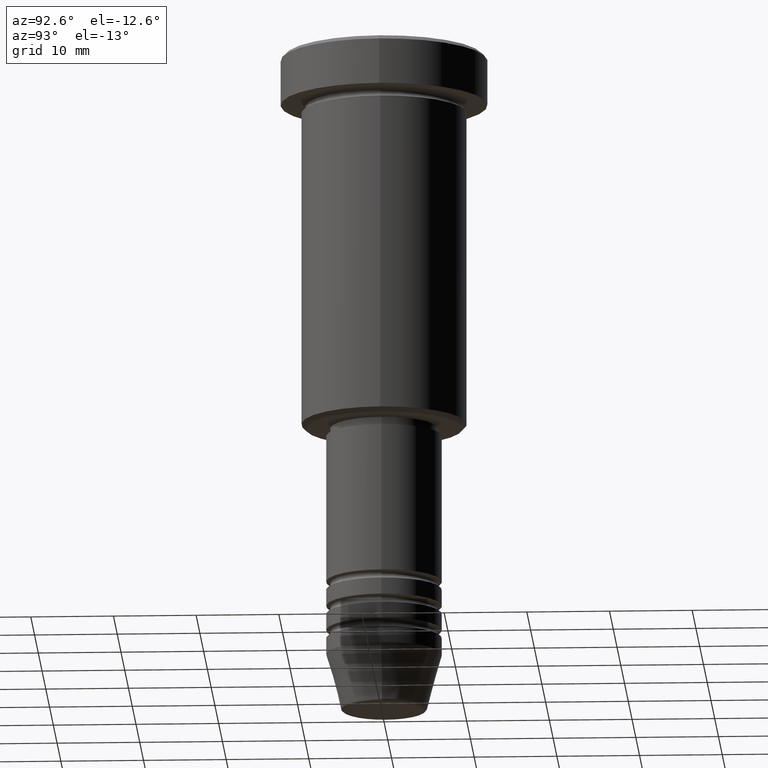
[diagram: clean part render]
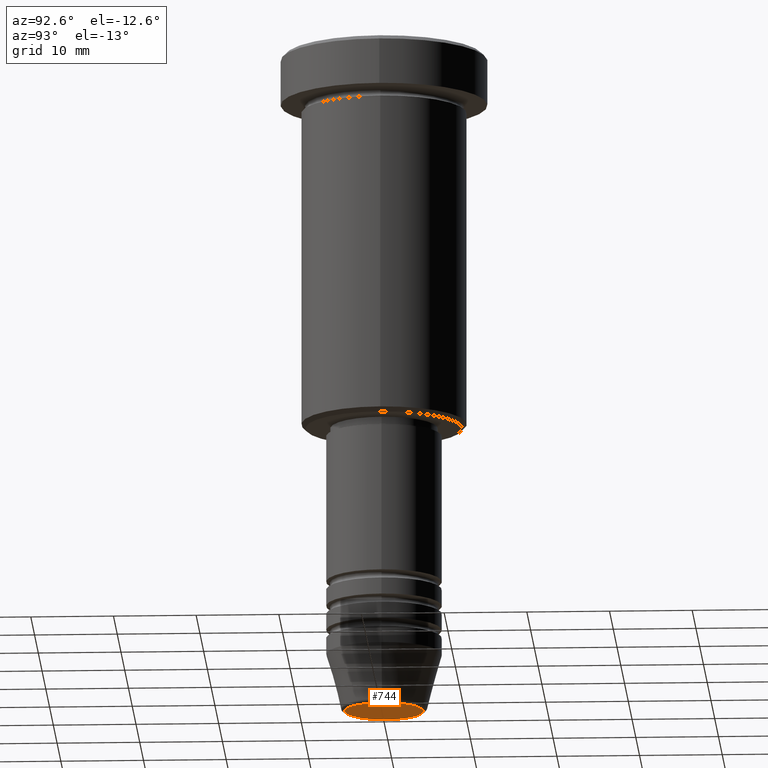
[diagram: same view with one face highlighted and labeled with its STEP entity id]
A machine part, auxiliary view. The second image highlights one B-rep face of the part: STEP entity #744.
In plain terms, the highlighted planar face has unit normal (0, -0, 1).
Its self-contained STEP definition (entity closure, byte-faithful):
#119 = CIRCLE ( 'NONE', #326, 4.740692158992654726 ) ;
#125 = ORIENTED_EDGE ( 'NONE', *, *, #1021, .T. ) ;
#228 = DIRECTION ( 'NONE',  ( 0.000000000000000000, -0.000000000000000000, 1.000000000000000000 ) ) ;
#244 = DIRECTION ( 'NONE',  ( 0.000000000000000000, 0.000000000000000000, -1.000000000000000000 ) ) ;
#276 = CARTESIAN_POINT ( 'NONE',  ( -4.740692158992654726, 6.101402971097975816E-16, -81.00000000000001421 ) ) ;
#279 = DIRECTION ( 'NONE',  ( 1.000000000000000000, 0.000000000000000000, 0.000000000000000000 ) ) ;
#326 = AXIS2_PLACEMENT_3D ( 'NONE', #1015, #462, #279 ) ;
#462 = DIRECTION ( 'NONE',  ( 0.000000000000000000, 0.000000000000000000, -1.000000000000000000 ) ) ;
#467 = EDGE_CURVE ( 'NONE', #639, #853, #794, .T. ) ;
#517 = CARTESIAN_POINT ( 'NONE',  ( 0.000000000000000000, 0.000000000000000000, -81.00000000000001421 ) ) ;
#639 = VERTEX_POINT ( 'NONE', #276 ) ;
#657 = AXIS2_PLACEMENT_3D ( 'NONE', #1135, #228, #848 ) ;
#704 = DIRECTION ( 'NONE',  ( 1.000000000000000000, 0.000000000000000000, 0.000000000000000000 ) ) ;
#744 = ADVANCED_FACE ( 'NONE', ( #871 ), #1116, .F. ) ;
#789 = ORIENTED_EDGE ( 'NONE', *, *, #467, .T. ) ;
#794 = CIRCLE ( 'NONE', #1173, 4.740692158992654726 ) ;
#848 = DIRECTION ( 'NONE',  ( 1.000000000000000000, 0.000000000000000000, 0.000000000000000000 ) ) ;
#853 = VERTEX_POINT ( 'NONE', #1064 ) ;
#871 = FACE_OUTER_BOUND ( 'NONE', #1070, .T. ) ;
#1015 = CARTESIAN_POINT ( 'NONE',  ( 0.000000000000000000, 0.000000000000000000, -81.00000000000001421 ) ) ;
#1021 = EDGE_CURVE ( 'NONE', #853, #639, #119, .T. ) ;
#1064 = CARTESIAN_POINT ( 'NONE',  ( 4.740692158992654726, 0.000000000000000000, -81.00000000000001421 ) ) ;
#1070 = EDGE_LOOP ( 'NONE', ( #125, #789 ) ) ;
#1116 = PLANE ( 'NONE',  #657 ) ;
#1135 = CARTESIAN_POINT ( 'NONE',  ( 0.000000000000000000, 0.000000000000000000, -81.00000000000001421 ) ) ;
#1173 = AXIS2_PLACEMENT_3D ( 'NONE', #517, #244, #704 ) ;